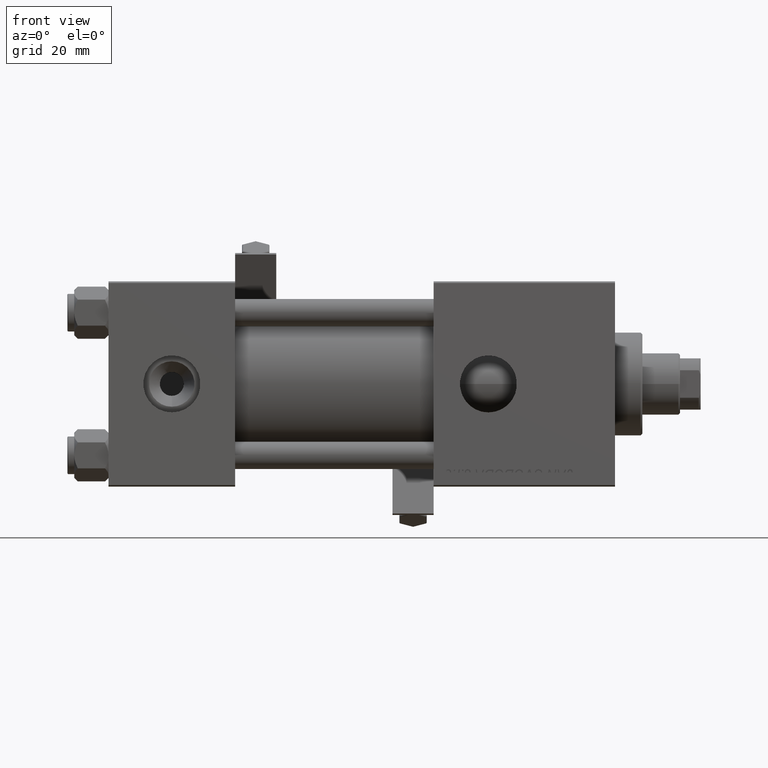
[diagram: clean part render]
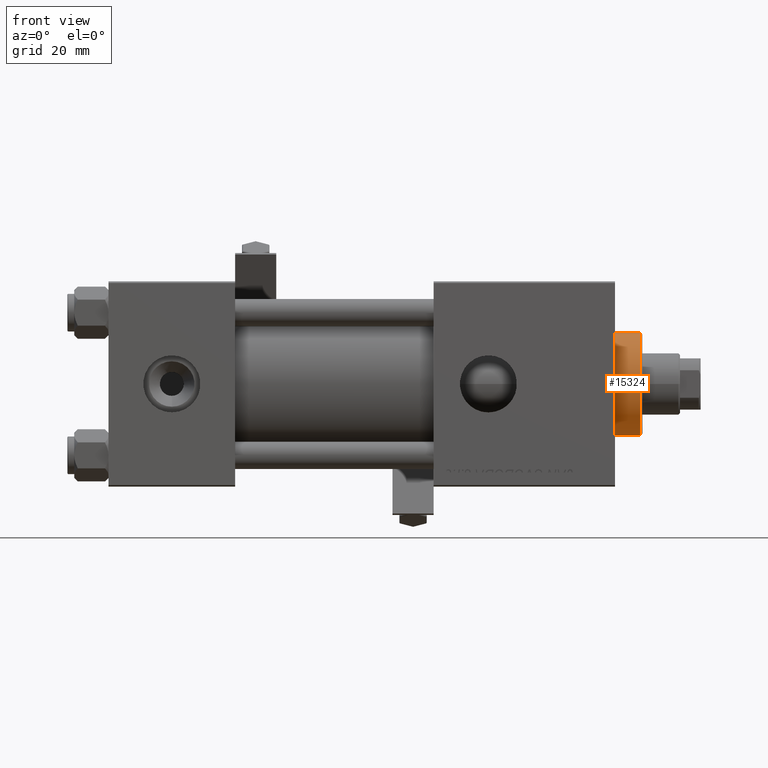
[diagram: same view with one face highlighted and labeled with its STEP entity id]
A machine part, front view. The second image highlights one B-rep face of the part: STEP entity #15324.
In plain terms, the highlighted cylindrical surface (partial cylindrical patch) has radius 15 mm, axis along (-1, -0, -0).
Its self-contained STEP definition (entity closure, byte-faithful):
#1526 = VECTOR ( 'NONE', #3138, 1000.000000000000000 ) ;
#2644 = DIRECTION ( 'NONE',  ( -1.000000000000000000, 0.000000000000000000, 0.000000000000000000 ) ) ;
#3089 = DIRECTION ( 'NONE',  ( -0.000000000000000000, -0.000000000000000000, -1.000000000000000000 ) ) ;
#3138 = DIRECTION ( 'NONE',  ( -0.000000000000000000, -0.000000000000000000, -1.000000000000000000 ) ) ;
#3222 = DIRECTION ( 'NONE',  ( 1.000000000000000000, 0.000000000000000000, 0.000000000000000000 ) ) ;
#4842 = CARTESIAN_POINT ( 'NONE',  ( -15.00000000000000000, 0.000000000000000000, 36.20000000000000284 ) ) ;
#6687 = CARTESIAN_POINT ( 'NONE',  ( 0.000000000000000000, 0.000000000000000000, 36.69999999999999574 ) ) ;
#8338 = ORIENTED_EDGE ( 'NONE', *, *, #34086, .T. ) ;
#9809 = VERTEX_POINT ( 'NONE', #42485 ) ;
#10443 = ORIENTED_EDGE ( 'NONE', *, *, #23248, .T. ) ;
#11781 = VECTOR ( 'NONE', #3089, 1000.000000000000000 ) ;
#14952 = CIRCLE ( 'NONE', #15798, 15.00000000000000000 ) ;
#15324 = ADVANCED_FACE ( 'NONE', ( #51719 ), #34985, .T. ) ;
#15798 = AXIS2_PLACEMENT_3D ( 'NONE', #32326, #43928, #3222 ) ;
#16235 = AXIS2_PLACEMENT_3D ( 'NONE', #49228, #33575, #29797 ) ;
#18535 = CARTESIAN_POINT ( 'NONE',  ( -15.00000000000000000, 0.000000000000000000, 28.69999999999999929 ) ) ;
#18788 = LINE ( 'NONE', #31454, #1526 ) ;
#23248 = EDGE_CURVE ( 'NONE', #43039, #9809, #14952, .T. ) ;
#24092 = ORIENTED_EDGE ( 'NONE', *, *, #52017, .T. ) ;
#29797 = DIRECTION ( 'NONE',  ( 1.000000000000000000, 0.000000000000000000, 0.000000000000000000 ) ) ;
#30102 = ORIENTED_EDGE ( 'NONE', *, *, #49316, .F. ) ;
#31454 = CARTESIAN_POINT ( 'NONE',  ( 15.00000000000000000, 1.836970198721029589E-15, 36.69999999999999574 ) ) ;
#32326 = CARTESIAN_POINT ( 'NONE',  ( 0.000000000000000000, 0.000000000000000000, 28.69999999999999929 ) ) ;
#32730 = LINE ( 'NONE', #48125, #11781 ) ;
#33575 = DIRECTION ( 'NONE',  ( 0.000000000000000000, 0.000000000000000000, -1.000000000000000000 ) ) ;
#34086 = EDGE_CURVE ( 'NONE', #38570, #43039, #32730, .T. ) ;
#34985 = CYLINDRICAL_SURFACE ( 'NONE', #44737, 15.00000000000000000 ) ;
#38570 = VERTEX_POINT ( 'NONE', #4842 ) ;
#39475 = CIRCLE ( 'NONE', #16235, 15.00000000000000000 ) ;
#39570 = DIRECTION ( 'NONE',  ( -0.000000000000000000, -0.000000000000000000, -1.000000000000000000 ) ) ;
#41622 = VERTEX_POINT ( 'NONE', #49218 ) ;
#42485 = CARTESIAN_POINT ( 'NONE',  ( 15.00000000000000000, 1.836970198721029589E-15, 28.69999999999999929 ) ) ;
#43039 = VERTEX_POINT ( 'NONE', #18535 ) ;
#43928 = DIRECTION ( 'NONE',  ( 0.000000000000000000, 0.000000000000000000, 1.000000000000000000 ) ) ;
#44204 = EDGE_LOOP ( 'NONE', ( #30102, #24092, #8338, #10443 ) ) ;
#44737 = AXIS2_PLACEMENT_3D ( 'NONE', #6687, #39570, #2644 ) ;
#48125 = CARTESIAN_POINT ( 'NONE',  ( -15.00000000000000000, 0.000000000000000000, 36.69999999999999574 ) ) ;
#49218 = CARTESIAN_POINT ( 'NONE',  ( 15.00000000000000000, 1.836970198721029589E-15, 36.20000000000000284 ) ) ;
#49228 = CARTESIAN_POINT ( 'NONE',  ( 0.000000000000000000, 0.000000000000000000, 36.20000000000000284 ) ) ;
#49316 = EDGE_CURVE ( 'NONE', #41622, #9809, #18788, .T. ) ;
#51719 = FACE_OUTER_BOUND ( 'NONE', #44204, .T. ) ;
#52017 = EDGE_CURVE ( 'NONE', #41622, #38570, #39475, .T. ) ;